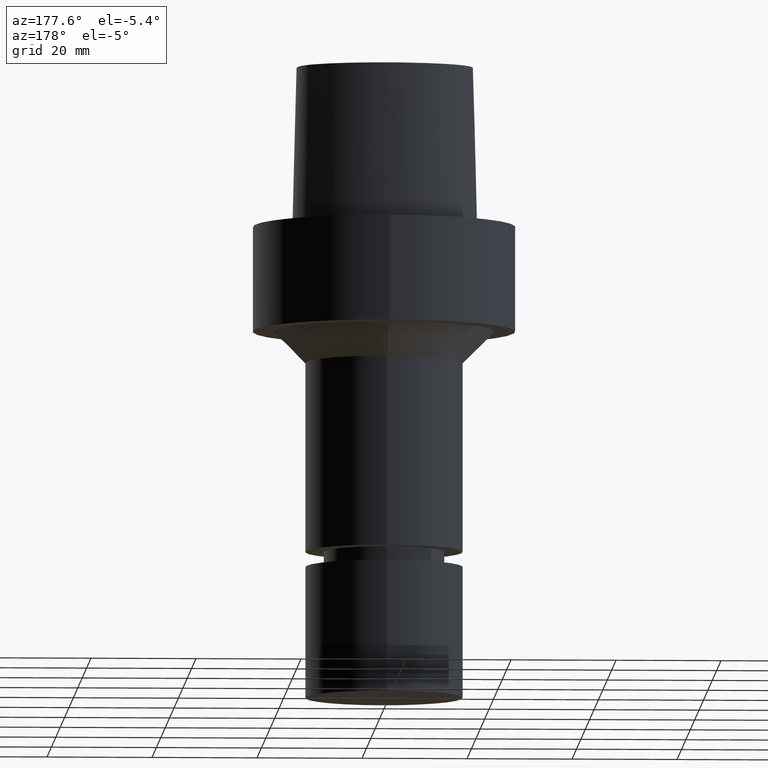
[diagram: clean part render]
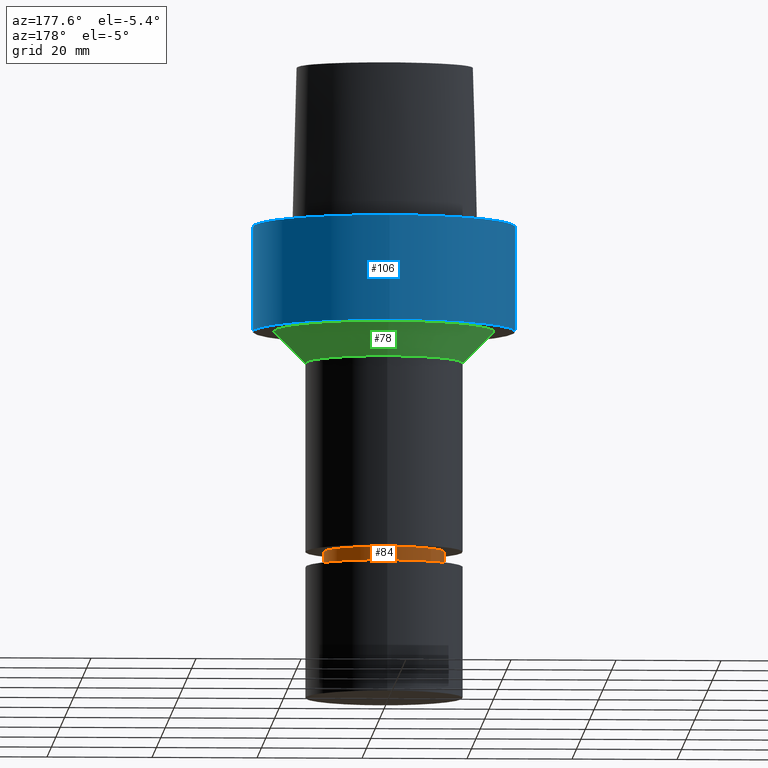
[diagram: same view with three faces highlighted in distinct colors, each labeled with its STEP entity id]
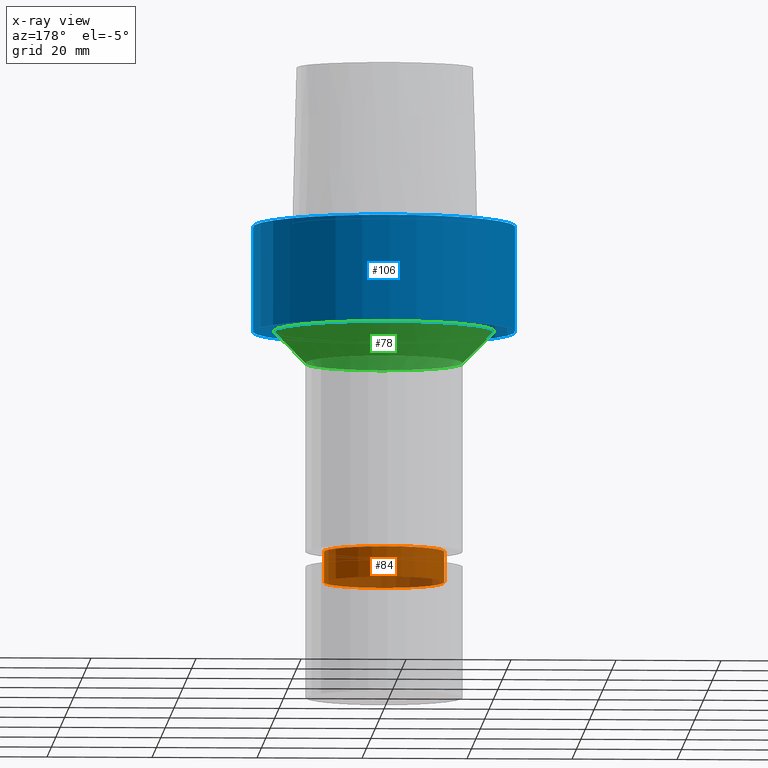
[diagram: x-ray of the same camera — body ghosted, the three highlighted faces saturated]
A machine part, auxiliary view with three faces highlighted in distinct colors.
The next image is the same camera in x-ray (body ghosted, the three faces saturated) — at least one of them is partly hidden behind the body in this view.
Their STEP definitions:

[orange] entity #84 — the highlighted cylindrical surface (bore or boss wall) has radius 11.5 mm, axis along (0, 0, -1).
#73=EDGE_CURVE('Unnamed[1]',#180,#180,#181,.T.);
#84=ADVANCED_FACE('Unnamed[1]',(#197,#198),#199,.T.);
#119=EDGE_CURVE('Unnamed[1]',#249,#249,#250,.T.);
#180=VERTEX_POINT('',#706);
#181=CIRCLE('',#707,11.4999999999907);
#197=FACE_BOUND('',#727,.T.);
#198=FACE_BOUND('',#728,.T.);
#199=CYLINDRICAL_SURFACE('',#729,11.4999999999964);
#249=VERTEX_POINT('',#790);
#250=CIRCLE('',#791,11.5000000000021);
#706=CARTESIAN_POINT('',(3.80252831135254E-015,11.4999999999907,-62.1000000000001));
#707=AXIS2_PLACEMENT_3D('',#998,#999,#1000);
#727=EDGE_LOOP('',(#1017));
#728=EDGE_LOOP('',(#1018));
#729=AXIS2_PLACEMENT_3D('',#1019,#1020,#1021);
#790=CARTESIAN_POINT('',(4.15836933111325E-015,11.5000000000021,-67.9113248653973));
#791=AXIS2_PLACEMENT_3D('',#1073,#1074,#1075);
#998=CARTESIAN_POINT('',(3.80252831135254E-015,7.60505662270507E-015,-62.1000000000001));
#999=DIRECTION('',(6.12323399573677E-017,1.22464679914735E-016,-1.0));
#1000=DIRECTION('',(-1.23259516440783E-032,1.0,1.22464679914735E-016));
#1017=ORIENTED_EDGE('',*,*,#119,.F.);
#1018=ORIENTED_EDGE('',*,*,#73,.T.);
#1019=CARTESIAN_POINT('',(3.98044882123289E-015,7.96089764246578E-015,-65.0056624326987));
#1020=DIRECTION('',(6.12323399573677E-017,1.22464679914735E-016,-1.0));
#1021=DIRECTION('',(-1.23259516440783E-032,1.0,1.22464679914735E-016));
#1073=CARTESIAN_POINT('',(4.15836933111325E-015,8.31673866222649E-015,-67.9113248653973));
#1074=DIRECTION('',(6.12323399573677E-017,1.22464679914735E-016,-1.0));
#1075=DIRECTION('',(-1.23259516440783E-032,1.0,1.22464679914735E-016));

[blue] entity #106 — the highlighted cylindrical surface (bore or boss wall) has radius 25 mm, axis along (0, 0, -1).
#75=EDGE_CURVE('Unnamed[1]',#183,#183,#184,.T.);
#100=EDGE_CURVE('Unnamed[1]',#221,#221,#222,.T.);
#106=ADVANCED_FACE('Unnamed[1]',(#230,#231),#232,.T.);
#183=VERTEX_POINT('',#710);
#184=CIRCLE('',#711,25.0);
#221=VERTEX_POINT('',#756);
#222=CIRCLE('',#757,25.0);
#230=FACE_BOUND('',#767,.T.);
#231=FACE_BOUND('',#768,.T.);
#232=CYLINDRICAL_SURFACE('',#769,25.0);
#710=CARTESIAN_POINT('',(-3.08148791101958E-031,25.0,3.06161699786838E-015));
#711=AXIS2_PLACEMENT_3D('',#1001,#1002,#1003);
#756=CARTESIAN_POINT('',(1.22464679914735E-015,25.0,-20.0));
#757=AXIS2_PLACEMENT_3D('',#1043,#1044,#1045);
#767=EDGE_LOOP('',(#1053));
#768=EDGE_LOOP('',(#1054));
#769=AXIS2_PLACEMENT_3D('',#1055,#1056,#1057);
#1001=CARTESIAN_POINT('',(0.0,0.0,0.0));
#1002=DIRECTION('',(6.12323399573677E-017,1.22464679914735E-016,-1.0));
#1003=DIRECTION('',(-1.23259516440783E-032,1.0,1.22464679914735E-016));
#1043=CARTESIAN_POINT('',(1.22464679914735E-015,2.44929359829471E-015,-20.0));
#1044=DIRECTION('',(6.12323399573677E-017,1.22464679914735E-016,-1.0));
#1045=DIRECTION('',(-1.23259516440783E-032,1.0,1.22464679914735E-016));
#1053=ORIENTED_EDGE('',*,*,#100,.F.);
#1054=ORIENTED_EDGE('',*,*,#75,.T.);
#1055=CARTESIAN_POINT('',(6.12323399573677E-016,1.22464679914735E-015,-10.0));
#1056=DIRECTION('',(6.12323399573677E-017,1.22464679914735E-016,-1.0));
#1057=DIRECTION('',(-1.23259516440783E-032,1.0,1.22464679914735E-016));

[green] entity #78 — the highlighted conical surface has half-angle 45 deg.
#78=ADVANCED_FACE('Unnamed[1]',(#187,#188),#189,.T.);
#92=EDGE_CURVE('Unnamed[1]',#209,#209,#210,.T.);
#127=EDGE_CURVE('Unnamed[1]',#260,#260,#261,.T.);
#187=FACE_BOUND('',#715,.T.);
#188=FACE_BOUND('',#716,.T.);
#189=CONICAL_SURFACE('',#717,18.0000000000003,0.785398163397449);
#209=VERTEX_POINT('',#741);
#210=CIRCLE('',#742,21.0000000000003);
#260=VERTEX_POINT('',#853);
#261=CIRCLE('',#854,15.0000000000003);
#715=EDGE_LOOP('',(#1005));
#716=EDGE_LOOP('',(#1006));
#717=AXIS2_PLACEMENT_3D('',#1007,#1008,#1009);
#741=CARTESIAN_POINT('',(1.22464679914735E-015,21.0000000000003,-20.0));
#742=AXIS2_PLACEMENT_3D('',#1029,#1030,#1031);
#853=CARTESIAN_POINT('',(1.59204083889156E-015,15.0000000000003,-26.0));
#854=AXIS2_PLACEMENT_3D('',#1082,#1083,#1084);
#1005=ORIENTED_EDGE('',*,*,#127,.F.);
#1006=ORIENTED_EDGE('',*,*,#92,.T.);
#1007=CARTESIAN_POINT('',(1.40834381901946E-015,2.81668763803891E-015,-23.0));
#1008=DIRECTION('',(-6.12323399573677E-017,-1.22464679914735E-016,1.0));
#1009=DIRECTION('',(-1.23259516440783E-032,1.0,1.22464679914735E-016));
#1029=CARTESIAN_POINT('',(1.22464679914735E-015,2.44929359829471E-015,-20.0));
#1030=DIRECTION('',(6.12323399573677E-017,1.22464679914735E-016,-1.0));
#1031=DIRECTION('',(-1.23259516440783E-032,1.0,1.22464679914735E-016));
#1082=CARTESIAN_POINT('',(1.59204083889156E-015,3.18408167778312E-015,-26.0));
#1083=DIRECTION('',(6.12323399573677E-017,1.22464679914735E-016,-1.0));
#1084=DIRECTION('',(-1.23259516440783E-032,1.0,1.22464679914735E-016));